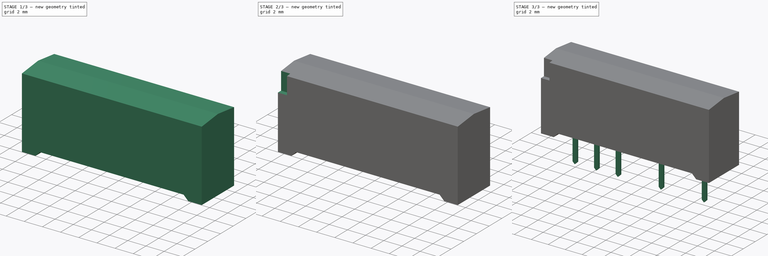
[diagram: build sequence overview — one tinted view per stage of 3, left to right]
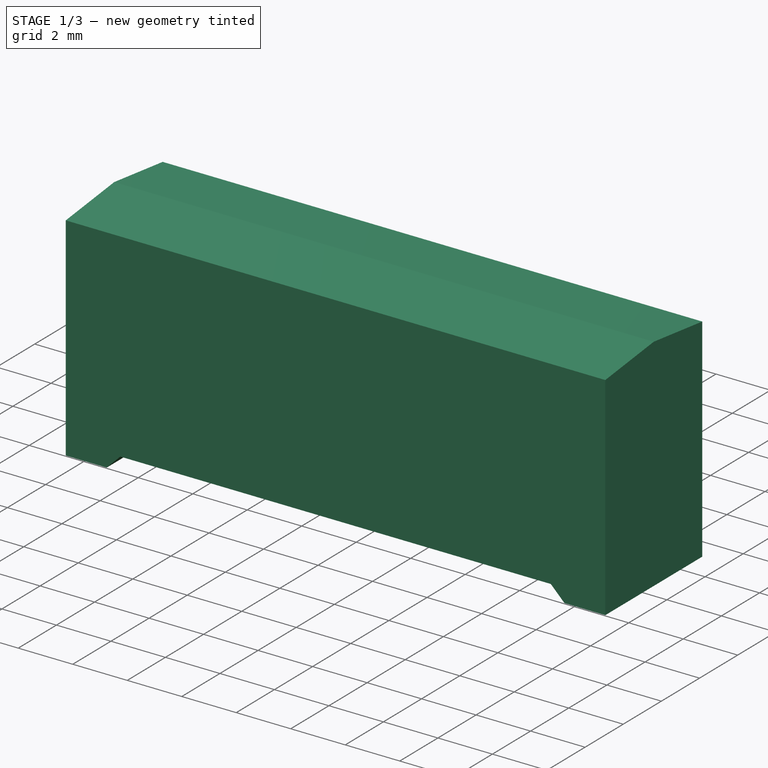
[diagram: stage 1 of 3 — iso view after this stage's code; geometry added in this stage tinted green]
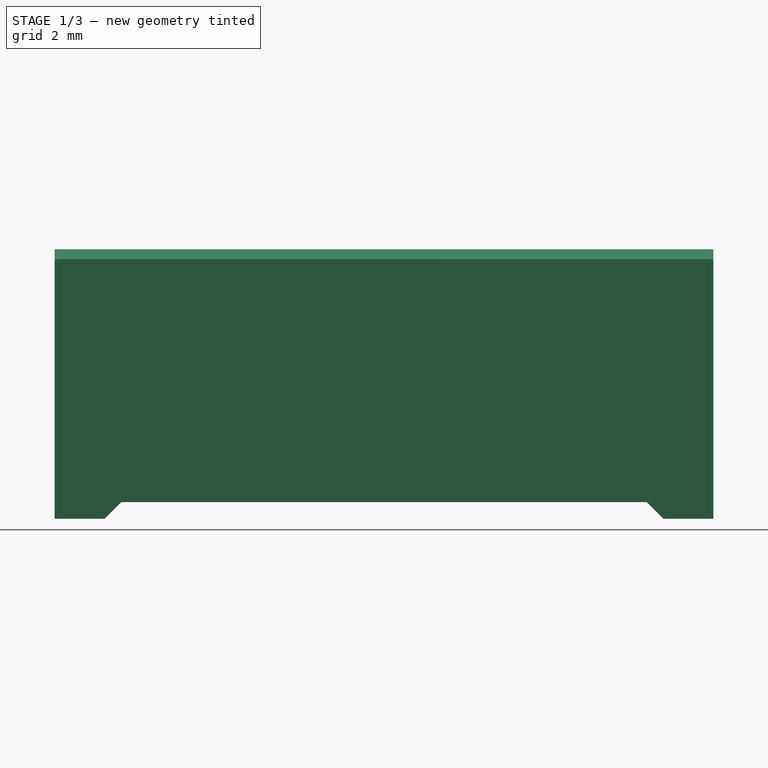
[diagram: stage 1 of 3 — front view after this stage's code; geometry added in this stage tinted green]
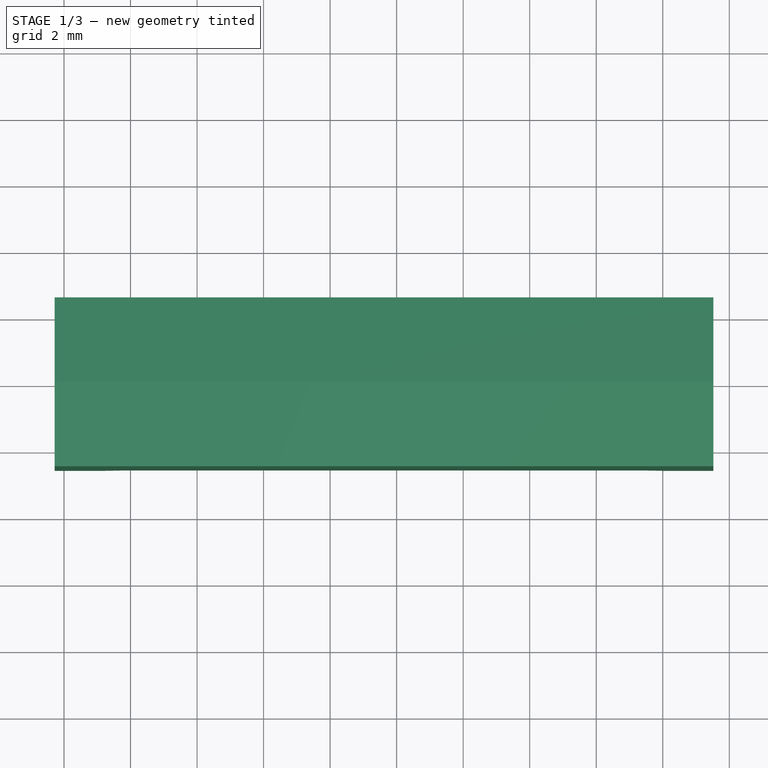
[diagram: stage 1 of 3 — top view after this stage's code; geometry added in this stage tinted green]
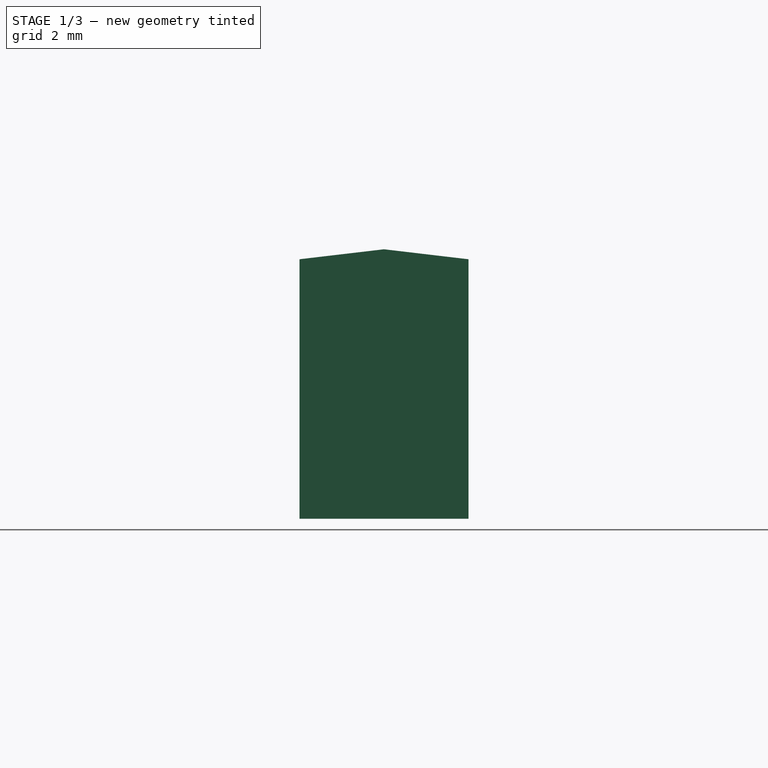
[diagram: stage 1 of 3 — right view after this stage's code; geometry added in this stage tinted green]
FCSTD DOCUMENT  (FreeCAD 0.16R6712 (Git))
Label: Relay_SPDT_StandexMeder_SIL_Form1C
License: All rights reserved
LicenseURL: http://en.wikipedia.org/wiki/All_rights_reserved
objects: Sketcher::SketchObject×4, Part::Feature×3, PartDesign::Pad×2, PartDesign::Pocket×2, App::DocumentObjectGroup×1, Part::MultiFuse×1
note: 16 computed .brp shape members not serialized (recipe doc carries the construction recipe); baked Part::Feature solids carry a one-line shape summary decoded from their .brp

FEATURE [Sketcher::SketchObject] Sketch
  Placement = pos=(-2.28,0,0) rot=(0.57735,0.57735,0.57735;2.0944rad)
  expr: Placement.Base.x = -1 * (19.8 - 15.24) / 2
  sketch-geometry (6):
    g0: LineSegment StartX=-2.54 StartY=0.1 StartZ=0 EndX=2.54 EndY=0.1 EndZ=0
    g1: LineSegment StartX=2.54 StartY=0.1 StartZ=0 EndX=2.54 EndY=7.9 EndZ=0
    g2: LineSegment StartX=2.54 StartY=7.9 StartZ=0 EndX=0 EndY=8.2 EndZ=0
    g3: LineSegment StartX=0 StartY=8.2 StartZ=0 EndX=-2.54 EndY=7.9 EndZ=0
    g4: LineSegment StartX=-2.54 StartY=7.9 StartZ=0 EndX=-2.54 EndY=0.1 EndZ=0
    g5: GeomPoint [constr] X=0 Y=0.1 Z=0
  constraints (17):
    c: Horizontal(g0)
    c: Coincident(g1,g0)
    c: Vertical(g1)
    c: PointOnObject(g2,g-2)
    c: Coincident(g3,g2)
    c: Vertical(g4)
    c: Coincident(g0,g4)
    c: Coincident(g3,g4)
    c: Equal(g1,g4)
    c: PointOnObject(g5,g-2)
    c: PointOnObject(g5,g0)
    c: Symmetric(g0,g0,g5)
    c: Coincident(g1,g2)
    c: DistanceY(g1,g1) = 7.8
    c: DistanceY(g1,g2) = 0.3
    c: DistanceY(g-1,g0) = 0.1
    c: DistanceX(g0,g0) = 5.08
FEATURE [PartDesign::Pad] Pad
  Length = 19.8
  Length2 = 100
  Placement = pos=(-2.28,0,0) rot=(0.57735,0.57735,0.57735;2.0944rad)
  Sketch = -> Sketch
  Type = 0
FEATURE [Sketcher::SketchObject] Sketch001
  ExternalGeometry = -> [Pad]
  Placement = pos=(-2.28,-2.54,0) rot=(-0.57735,-0.57735,0.57735;4.18879rad)
  Support = -> Pad [Face5]
  sketch-geometry (6):
    g0: LineSegment StartX=-0.1 StartY=18.3 StartZ=0 EndX=-0.6 EndY=17.8 EndZ=0
    g1: LineSegment StartX=-0.6 StartY=17.8 StartZ=0 EndX=-0.6 EndY=2 EndZ=0
    g2: LineSegment StartX=-0.6 StartY=2 StartZ=0 EndX=-0.1 EndY=1.5 EndZ=0
    g3: LineSegment StartX=-0.1 StartY=1.5 StartZ=0 EndX=-0.1 EndY=18.3 EndZ=0
    g4: LineSegment [constr] StartX=-0.1 StartY=18.3 StartZ=0 EndX=-0.1 EndY=19.8 EndZ=0
    g5: LineSegment [constr] StartX=-0.1 StartY=0 StartZ=0 EndX=-0.1 EndY=1.5 EndZ=0
  constraints (16):
    c: PointOnObject(g0,g-3)
    c: Coincident(g1,g0)
    c: Vertical(g1)
    c: Coincident(g2,g1)
    c: PointOnObject(g2,g-3)
    c: Coincident(g3,g2)
    c: Coincident(g3,g0)
    c: Coincident(g4,g0)
    c: Coincident(g4,g-3)
    c: Coincident(g5,g-3)
    c: Coincident(g5,g2)
    c: DistanceY(g0,g4) = 1.5
    c: DistanceY(g5,g2) = 1.5
    c: DistanceY(g2,g1) = 0.5
    c: DistanceY(g0,g0) = 0.5
    c: DistanceX(g0,g0) = 0.5
FEATURE [PartDesign::Pocket] Pocket
  Length = 5
  Placement = pos=(-2.28,0,0) rot=(0.57735,0.57735,0.57735;2.0944rad)
  Sketch = -> Sketch001
  Type = 1
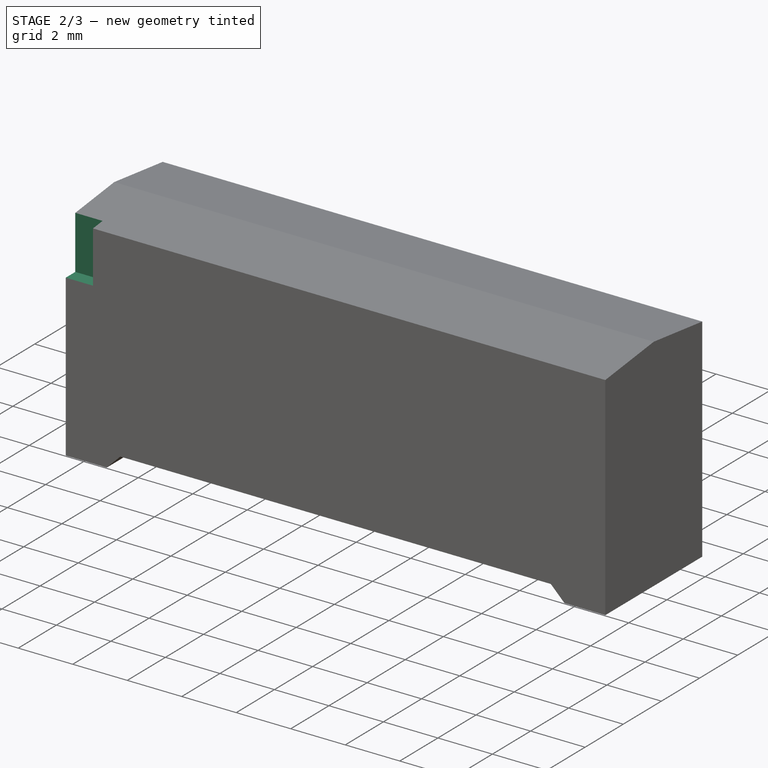
[diagram: stage 2 of 3 — iso view after this stage's code; geometry added in this stage tinted green]
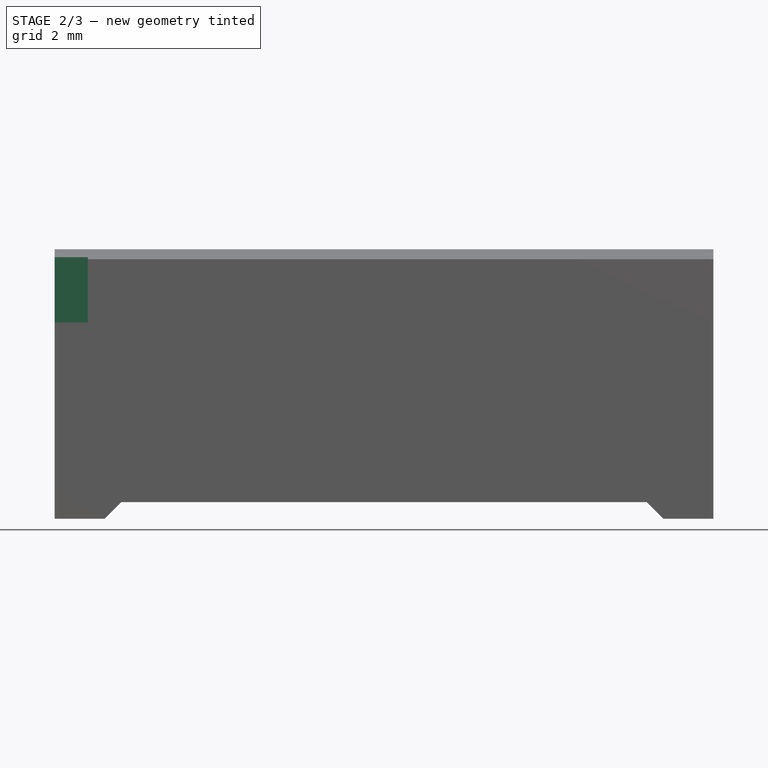
[diagram: stage 2 of 3 — front view after this stage's code; geometry added in this stage tinted green]
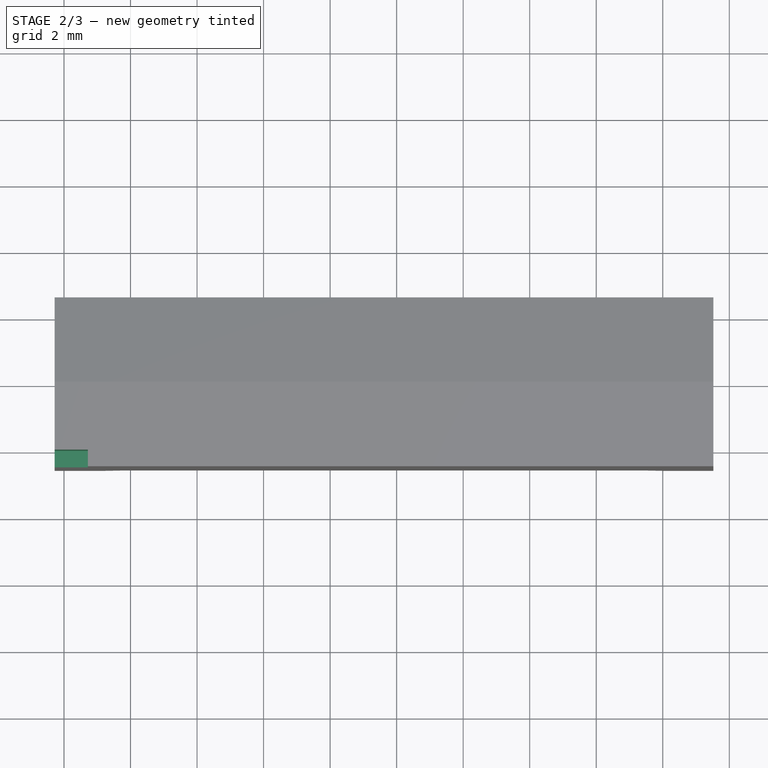
[diagram: stage 2 of 3 — top view after this stage's code; geometry added in this stage tinted green]
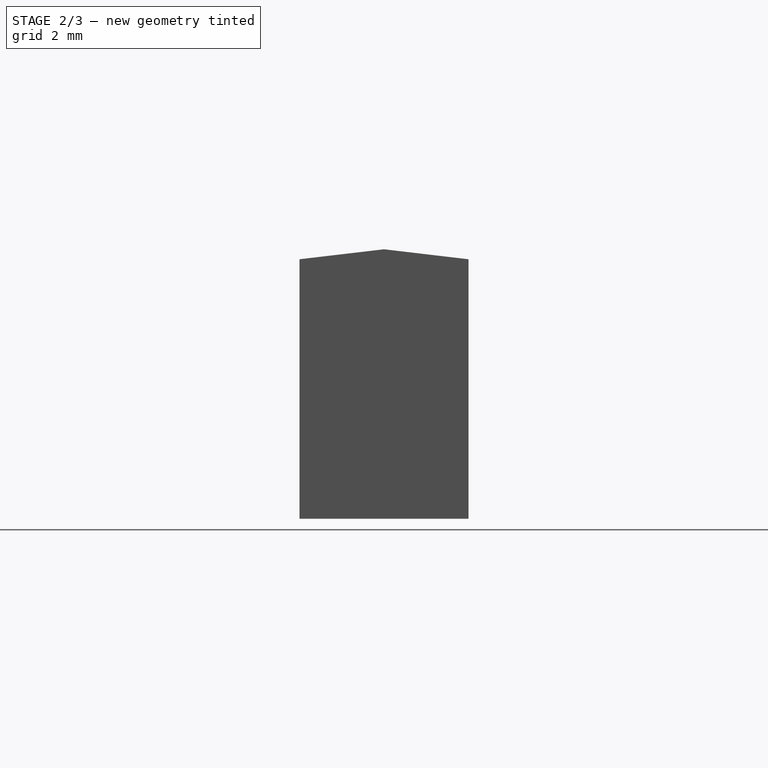
[diagram: stage 2 of 3 — right view after this stage's code; geometry added in this stage tinted green]
FEATURE [Part::Feature] FusionAxisZ1  label="Z"
  shape: bbox 0.8 x 0.8 x 14 mm, 8 faces (baked)
FEATURE [Part::Feature] FusionAxisY1  label="Y"
  Placement = pos=(0,0,0.05) rot=(-1,0,0;1.5708rad)
  shape: bbox 0.8 x 14 x 0.8 mm, 8 faces (baked)
FEATURE [Part::Feature] FusionAxisX1  label="X"
  Placement = pos=(0,-0.05,0) rot=(0,1,0;1.5708rad)
  shape: bbox 14 x 0.8 x 0.8 mm, 8 faces (baked)
FEATURE [App::DocumentObjectGroup] axis
  Group = -> [FusionAxisZ1,FusionAxisY1,FusionAxisX1]
FEATURE [Sketcher::SketchObject] Sketch003
  Placement = pos=(-2.28,-2.54,0) rot=(-0.57735,-0.57735,0.57735;4.18879rad)
  Support = -> Pocket [Face5]
  sketch-geometry (4):
    g0: LineSegment StartX=-8 StartY=0 StartZ=0 EndX=-6 EndY=0 EndZ=0
    g1: LineSegment StartX=-6 StartY=0 StartZ=0 EndX=-6 EndY=1 EndZ=0
    g2: LineSegment StartX=-6 StartY=1 StartZ=0 EndX=-8 EndY=1 EndZ=0
    g3: LineSegment StartX=-8 StartY=1 StartZ=0 EndX=-8 EndY=0 EndZ=0
  constraints (12):
    c: Coincident(g0,g1)
    c: Coincident(g1,g2)
    c: Coincident(g2,g3)
    c: Coincident(g3,g0)
    c: Horizontal(g0)
    c: Horizontal(g2)
    c: Vertical(g1)
    c: Vertical(g3)
    c: PointOnObject(g0,g-1)
    c: DistanceY(g1,g1) = 1
    c: DistanceX(g2,g2) = 2
    c: DistanceX(g0,g-1) = 8
FEATURE [PartDesign::Pocket] Pocket001
  Length = 0.5
  Placement = pos=(-2.28,0,0) rot=(0.57735,0.57735,0.57735;2.0944rad)
  Sketch = -> Sketch003
  Type = 0
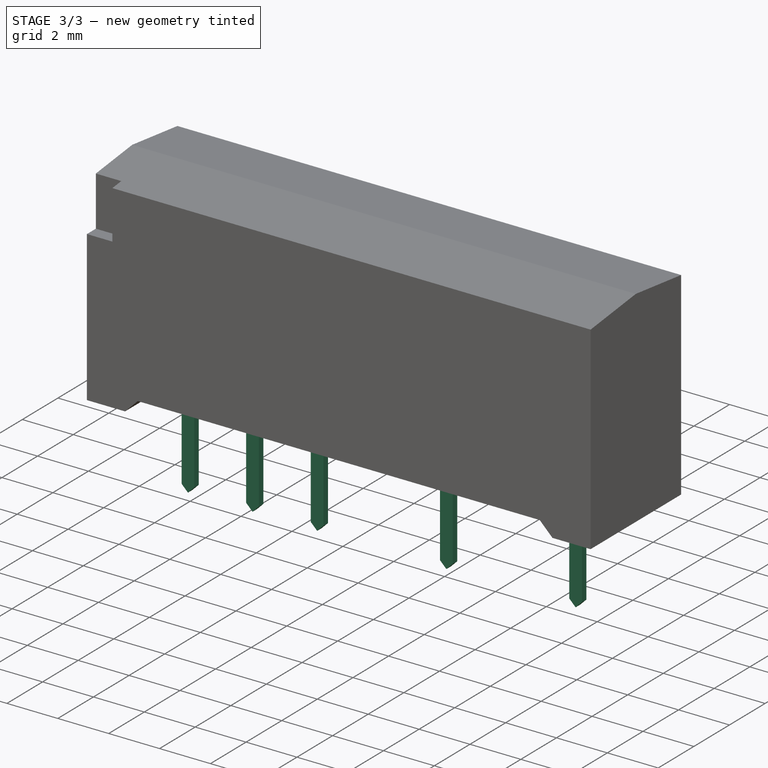
[diagram: stage 3 of 3 — iso view after this stage's code; geometry added in this stage tinted green]
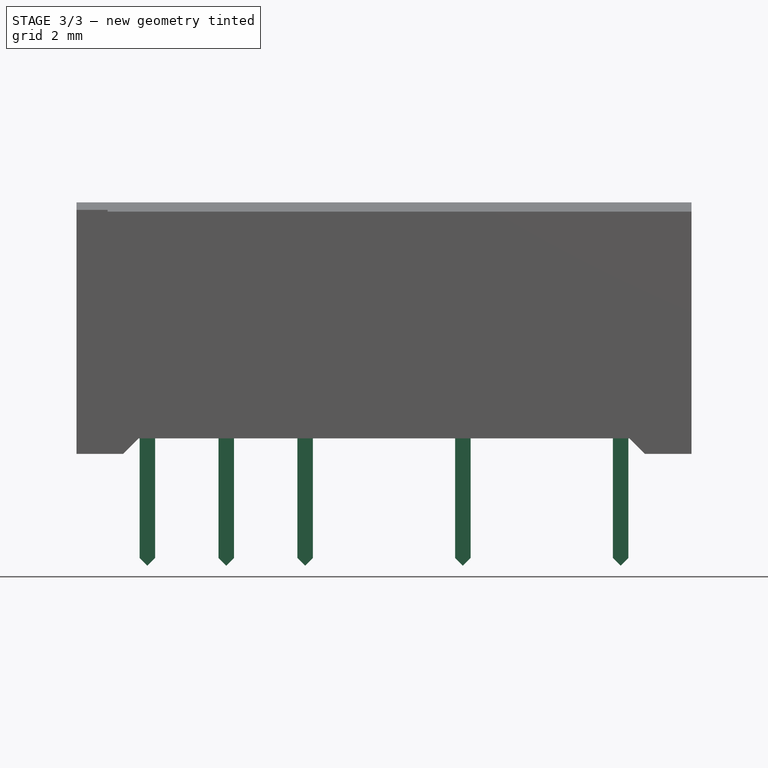
[diagram: stage 3 of 3 — front view after this stage's code; geometry added in this stage tinted green]
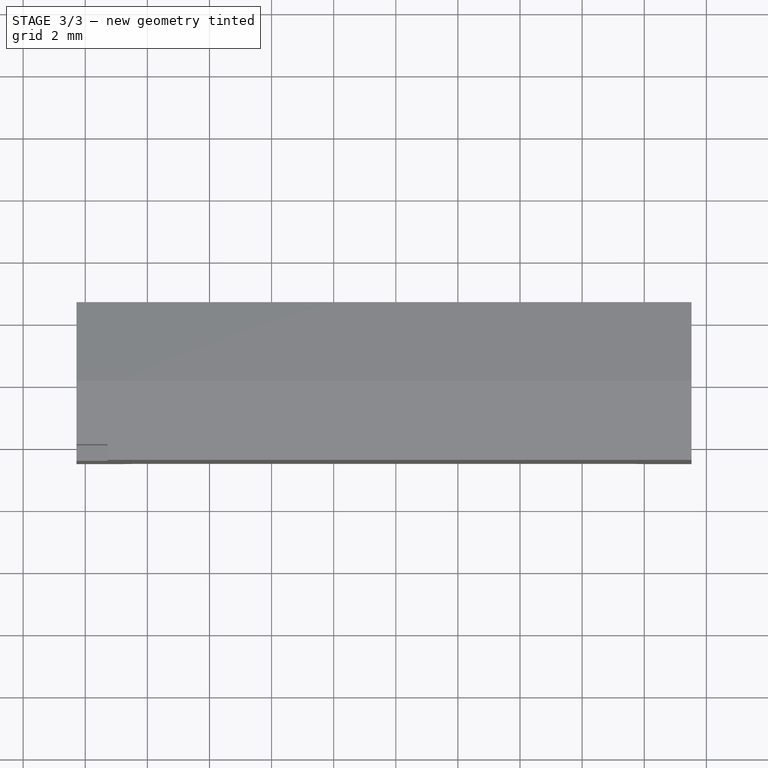
[diagram: stage 3 of 3 — top view after this stage's code; geometry added in this stage tinted green]
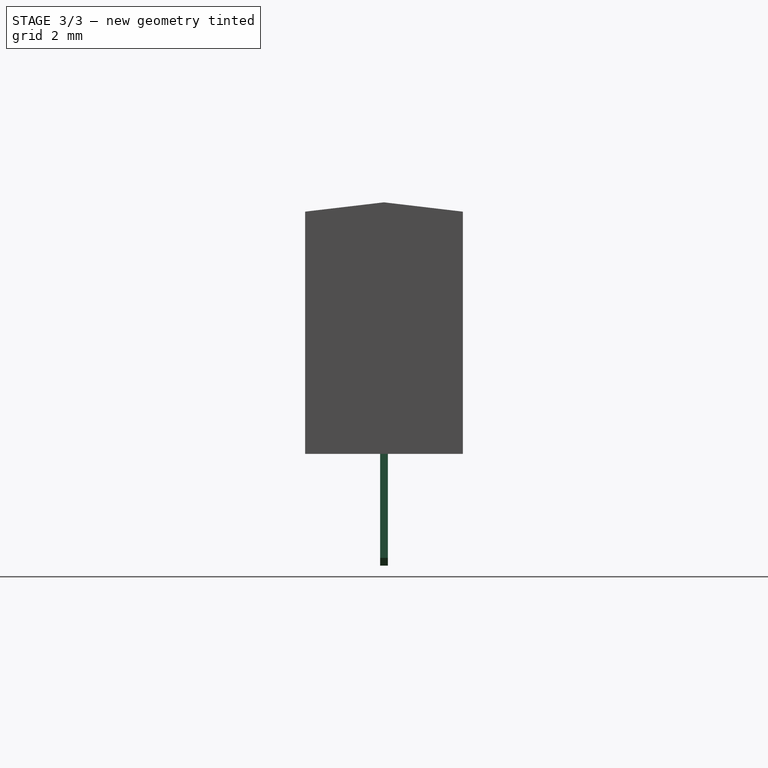
[diagram: stage 3 of 3 — right view after this stage's code; geometry added in this stage tinted green]
FEATURE [Sketcher::SketchObject] Sketch002
  Placement = pos=(0,0,0) rot=(1,0,0;1.5708rad)
  sketch-geometry (34):
    g0: LineSegment StartX=-0.25 StartY=1 StartZ=0 EndX=0.25 EndY=1 EndZ=0
    g1: LineSegment StartX=0.25 StartY=1 StartZ=0 EndX=0.25 EndY=-3.25 EndZ=0
    g2: LineSegment StartX=0.25 StartY=-3.25 StartZ=0 EndX=0 EndY=-3.5 EndZ=0
    g3: LineSegment StartX=0 StartY=-3.5 StartZ=0 EndX=-0.25 EndY=-3.25 EndZ=0
    g4: LineSegment StartX=-0.25 StartY=-3.25 StartZ=0 EndX=-0.25 EndY=1 EndZ=0
    g5: LineSegment StartX=4.83 StartY=1 StartZ=0 EndX=5.33 EndY=1 EndZ=0
    g6: LineSegment StartX=5.33 StartY=1 StartZ=0 EndX=5.33 EndY=-3.25 EndZ=0
    g7: LineSegment StartX=5.33 StartY=-3.25 StartZ=0 EndX=5.08 EndY=-3.5 EndZ=0
    g8: LineSegment StartX=5.08 StartY=-3.5 StartZ=0 EndX=4.83 EndY=-3.25 EndZ=0
    g9: LineSegment StartX=4.83 StartY=-3.25 StartZ=0 EndX=4.83 EndY=1 EndZ=0
    g10: LineSegment StartX=9.91 StartY=1 StartZ=0 EndX=10.41 EndY=1 EndZ=0
    g11: LineSegment StartX=10.41 StartY=1 StartZ=0 EndX=10.41 EndY=-3.25 EndZ=0
    g12: LineSegment StartX=10.41 StartY=-3.25 StartZ=0 EndX=10.16 EndY=-3.5 EndZ=0
    g13: LineSegment StartX=10.16 StartY=-3.5 StartZ=0 EndX=9.91 EndY=-3.25 EndZ=0
    g14: LineSegment StartX=9.91 StartY=-3.25 StartZ=0 EndX=9.91 EndY=1 EndZ=0
    g15: LineSegment StartX=14.99 StartY=1 StartZ=0 EndX=15.49 EndY=1 EndZ=0
    g16: LineSegment StartX=15.49 StartY=1 StartZ=0 EndX=15.49 EndY=-3.25 EndZ=0
    g17: LineSegment StartX=15.49 StartY=-3.25 StartZ=0 EndX=15.24 EndY=-3.5 EndZ=0
    g18: LineSegment StartX=15.24 StartY=-3.5 StartZ=0 EndX=14.99 EndY=-3.25 EndZ=0
    g19: LineSegment StartX=14.99 StartY=-3.25 StartZ=0 EndX=14.99 EndY=1 EndZ=0
    g20: LineSegment [constr] StartX=5.08 StartY=1 StartZ=0 EndX=5.08 EndY=-3.5 EndZ=0
    g21: LineSegment [constr] StartX=10.16 StartY=1 StartZ=0 EndX=10.16 EndY=-3.5 EndZ=0
    g22: LineSegment [constr] StartX=15.24 StartY=1 StartZ=0 EndX=15.24 EndY=-3.5 EndZ=0
    g23: GeomPoint [constr] X=0 Y=1 Z=0
    g24: LineSegment [constr] StartX=14.99 StartY=1 StartZ=0 EndX=-0.25 EndY=1 EndZ=0
    g25: LineSegment [constr] StartX=0.008544 StartY=-3.5 StartZ=0 EndX=15.24 EndY=-3.5 EndZ=0
    g26: LineSegment [constr] StartX=0.25 StartY=-3.25 StartZ=0 EndX=15.49 EndY=-3.25 EndZ=0
    g27: LineSegment StartX=2.29 StartY=1 StartZ=0 EndX=2.79 EndY=1 EndZ=0
    g28: LineSegment StartX=2.79 StartY=1 StartZ=0 EndX=2.79 EndY=-3.25 EndZ=0
    g29: LineSegment StartX=2.79 StartY=-3.25 StartZ=0 EndX=2.54 EndY=-3.5 EndZ=0
    g30: LineSegment StartX=2.54 StartY=-3.5 StartZ=0 EndX=2.29 EndY=-3.25 EndZ=0
    g31: LineSegment StartX=2.29 StartY=-3.25 StartZ=0 EndX=2.29 EndY=1 EndZ=0
    g32: GeomPoint [constr] X=2.54 Y=1 Z=0
    g33: LineSegment [constr] StartX=2.54 StartY=1 StartZ=0 EndX=2.54 EndY=-3.5 EndZ=0
  constraints (94):
    c: Horizontal(g0)
    c: Coincident(g2,g1)
    c: PointOnObject(g2,g-2)
    c: Coincident(g2,g3)
    c: DistanceY(g2,g3) = 0.25
    c: Equal(g1,g4)
    c: DistanceY(g-1,g0) = 1
    c: Horizontal(g5)
    c: Vertical(g6)
    c: Coincident(g7,g6)
    c: Coincident(g9,g5)
    c: Vertical(g9)
    c: Coincident(g8,g9)
    c: Coincident(g7,g8)
    c: Equal(g6,g9)
    c: Coincident(g5,g6)
    c: Horizontal(g10)
    c: Vertical(g11)
    c: Coincident(g12,g11)
    c: Coincident(g14,g10)
    c: Vertical(g14)
    c: Coincident(g13,g14)
    c: Coincident(g12,g13)
    c: Equal(g11,g14)
    c: Coincident(g10,g11)
    c: Horizontal(g15)
    c: Vertical(g16)
    c: Coincident(g17,g16)
    c: Coincident(g19,g15)
    c: Vertical(g19)
    c: Coincident(g18,g19)
    c: Coincident(g17,g18)
    c: Equal(g16,g19)
    c: Coincident(g15,g16)
    c: Equal(g9,g4)
    c: Equal(g4,g14)
    c: Equal(g14,g19)
    c: Coincident(g20,g7)
    c: Vertical(g20)
    c: Vertical(g21)
    c: Coincident(g22,g17)
    c: Vertical(g22)
    c: Coincident(g12,g21)
    c: Symmetric(g15,g15,g22)
    c: Symmetric(g10,g10,g21)
    c: Symmetric(g5,g5,g20)
    c: PointOnObject(g23,g-2)
    c: Coincident(g24,g15)
    c: Coincident(g24,g0)
    c: Horizontal(g24)
    c: PointOnObject(g5,g24)
    c: PointOnObject(g10,g24)
    c: Coincident(g0,g1)
    c: Vertical(g1)
    c: Symmetric(g0,g0,g23)
    c: Equal(g0,g5)
    c: Equal(g5,g10)
    c: Equal(g10,g15)
    c: DistanceX(g23,g20) = 5.08
    c: DistanceX(g20,g21) = 5.08
    c: DistanceX(g21,g22) = 5.08
    c: Equal(g4,g1)
    c: Coincident(g0,g4)
    c: Coincident(g3,g4)
    c: Coincident(g25,g17)
    c: Horizontal(g25)
    c: PointOnObject(g12,g25)
    c: PointOnObject(g7,g25)
    c: DistanceX(g3,g1) = 0.5
    c: Vertical(g4)
    c: DistanceY(g2,g-1) = 3.5
    c: Coincident(g26,g1)
    c: Coincident(g26,g16)
    c: Horizontal(g26)
    c: Horizontal(g27)
    c: Coincident(g29,g28)
    c: Coincident(g29,g30)
    c: DistanceY(g29,g30) = 0.25
    c: Equal(g28,g31)
    c: Coincident(g27,g28)
    c: Vertical(g28)
    c: Symmetric(g27,g27,g32)
    c: Equal(g31,g28)
    c: Coincident(g27,g31)
    c: Coincident(g30,g31)
    c: DistanceX(g30,g28) = 0.5
    c: Vertical(g31)
    c: PointOnObject(g30,g26)
    c: PointOnObject(g27,g24)
    c: DistanceX(g23,g32) = 2.54
    c: Coincident(g33,g32)
    c: PointOnObject(g33,g25)
    c: Vertical(g33)
    c: Coincident(g29,g33)
FEATURE [PartDesign::Pad] Pad001
  Length = 0.25
  Length2 = 100
  Midplane = true
  Placement = pos=(0,0,0) rot=(1,0,0;1.5708rad)
  Sketch = -> Sketch002
  Type = 0
FEATURE [Part::MultiFuse] Pad001_mp_cp  label="Relay_SPDT_StandexMeder_SIL_Form1C"
  Shapes = -> [Pad001,Pocket001]
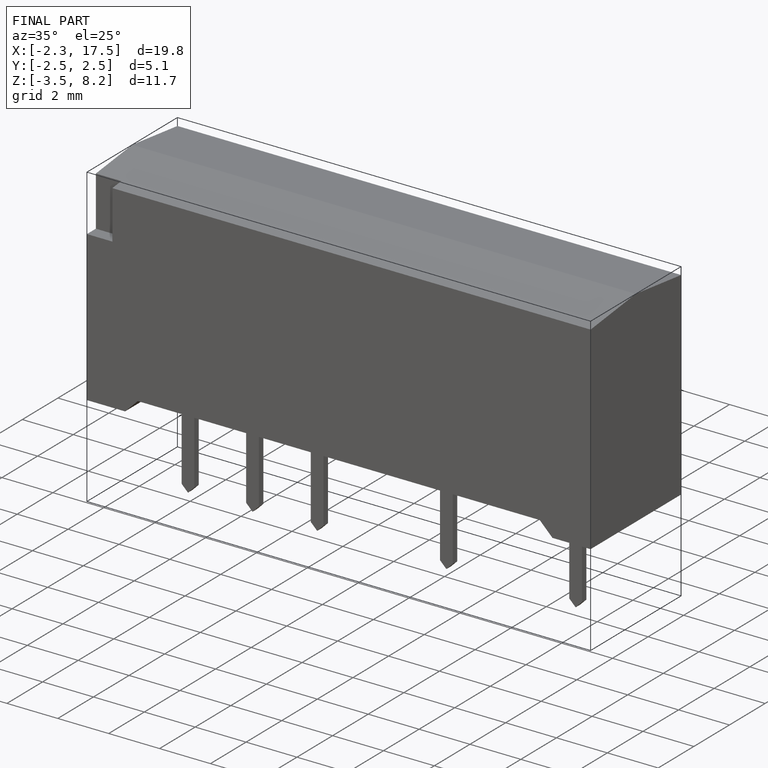
[diagram: finished part — iso view with bounding-box wireframe]
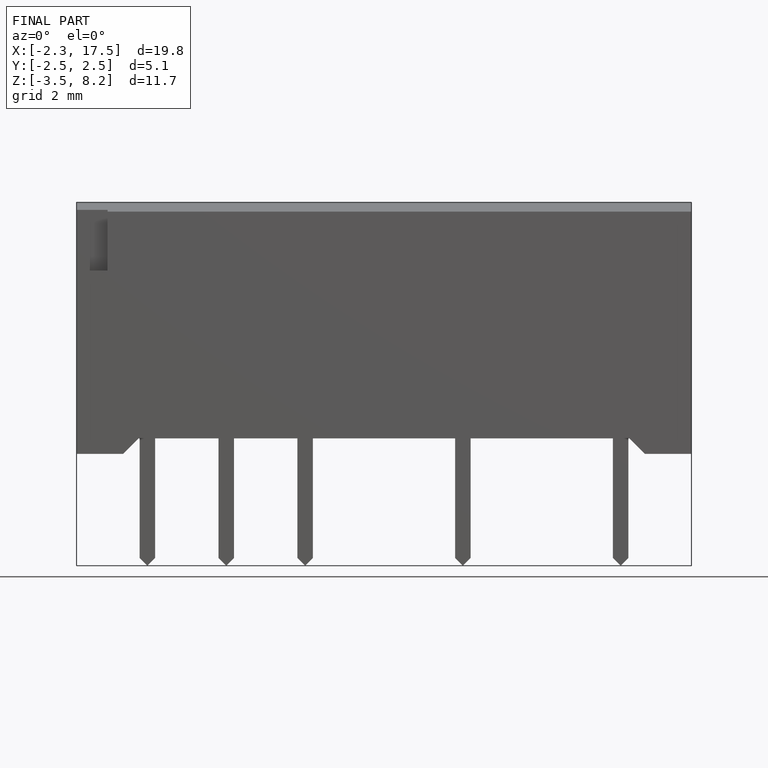
[diagram: finished part — front view with bounding-box wireframe]
